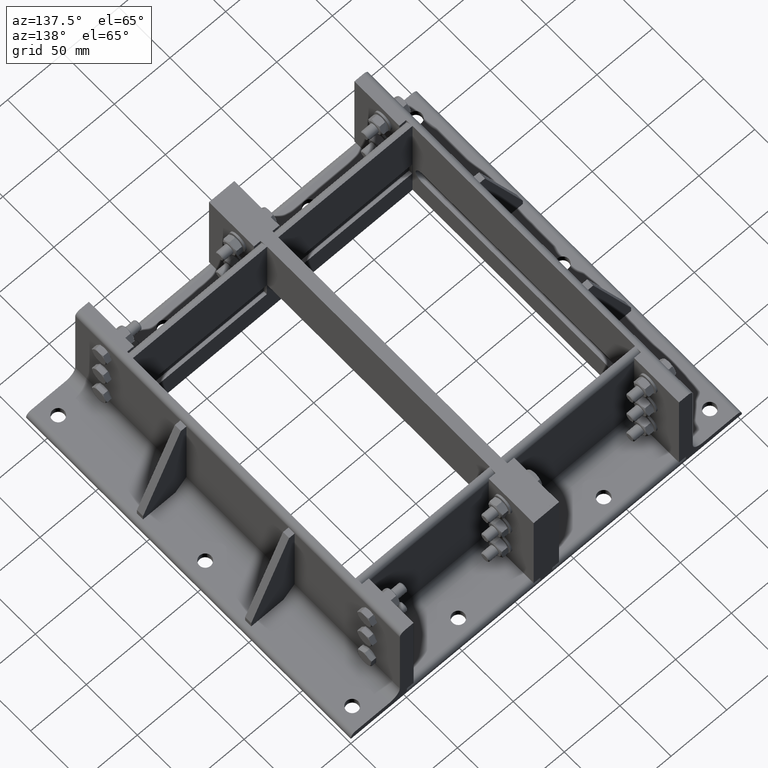
[diagram: clean part render]
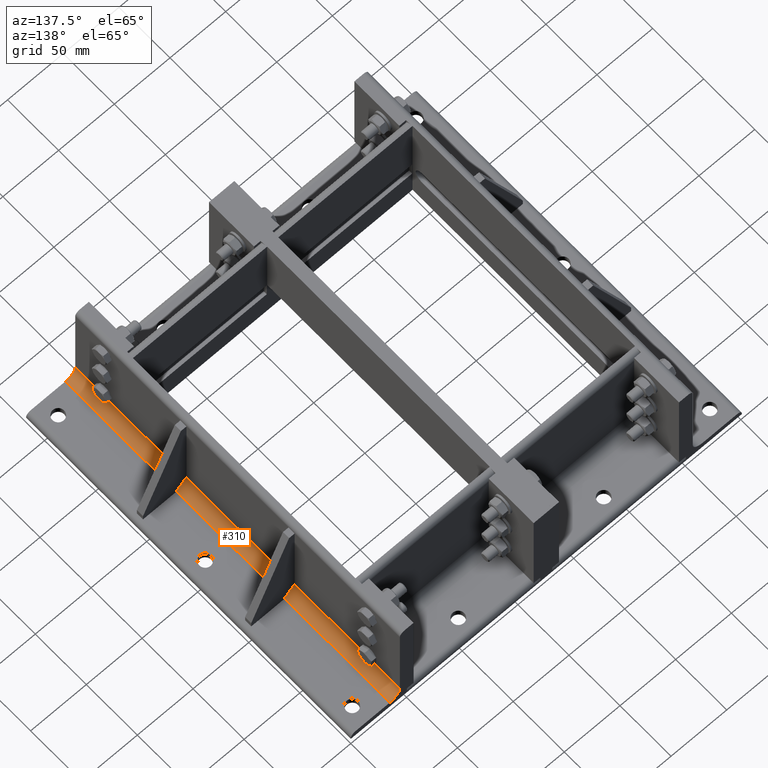
[diagram: same view with one face highlighted and labeled with its STEP entity id]
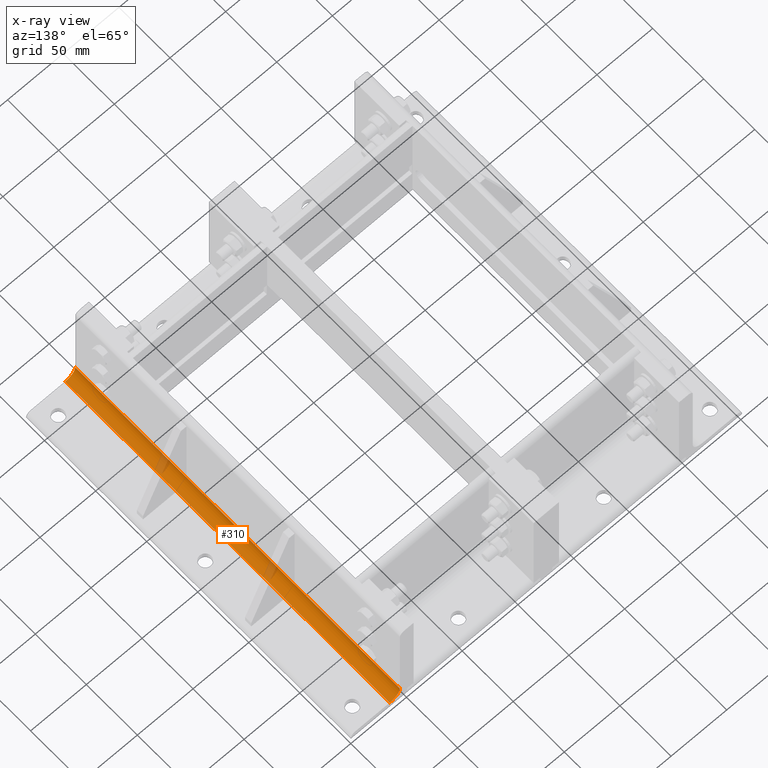
[diagram: x-ray of the same camera — body ghosted, the highlighted face saturated]
A machine part, auxiliary view. The second image highlights one B-rep face of the part: STEP entity #310.
The next image is the same camera in x-ray: the body ghosted, the highlighted face saturated — about 4% of this face is hidden behind the body in this view.
In plain terms, the highlighted cylindrical surface (edge-blend (fillet) strip) has radius 9 mm, axis along (0, 1, 0).
Its self-contained STEP definition (entity closure, byte-faithful):
#269=CARTESIAN_POINT('',(15.0,0.0,15.0));
#270=DIRECTION('',(0.0,1.0,0.0));
#271=DIRECTION('',(-0.707106781186548,0.0,-0.707106781186547));
#272=AXIS2_PLACEMENT_3D('',#269,#270,#271);
#273=CYLINDRICAL_SURFACE('',#272,9.0);
#274=CARTESIAN_POINT('',(5.999999999999998,0.0,15.000000000000002));
#275=VERTEX_POINT('',#274);
#276=CARTESIAN_POINT('',(15.0,0.0,6.000000000000001));
#277=VERTEX_POINT('',#276);
#278=CARTESIAN_POINT('',(15.0,0.0,15.0));
#279=DIRECTION('',(0.0,-1.0,0.0));
#280=DIRECTION('',(-0.707106781186548,0.0,-0.707106781186547));
#281=AXIS2_PLACEMENT_3D('',#278,#279,#280);
#282=CIRCLE('',#281,9.0);
#283=EDGE_CURVE('',#275,#277,#282,.T.);
#284=ORIENTED_EDGE('',*,*,#283,.T.);
#285=CARTESIAN_POINT('',(15.0,318.0,6.000000000000001));
#286=VERTEX_POINT('',#285);
#287=CARTESIAN_POINT('',(14.999999999999998,0.0,6.000000000000001));
#288=DIRECTION('',(0.0,1.0,0.0));
#289=VECTOR('',#288,318.0);
#290=LINE('',#287,#289);
#291=EDGE_CURVE('',#277,#286,#290,.T.);
#292=ORIENTED_EDGE('',*,*,#291,.T.);
#293=CARTESIAN_POINT('',(5.999999999999998,318.0,15.000000000000002));
#294=VERTEX_POINT('',#293);
#295=CARTESIAN_POINT('',(15.0,318.0,15.0));
#296=DIRECTION('',(0.0,1.0,0.0));
#297=DIRECTION('',(-0.707106781186548,0.0,-0.707106781186547));
#298=AXIS2_PLACEMENT_3D('',#295,#296,#297);
#299=CIRCLE('',#298,9.0);
#300=EDGE_CURVE('',#286,#294,#299,.T.);
#301=ORIENTED_EDGE('',*,*,#300,.T.);
#302=CARTESIAN_POINT('',(5.999999999999998,318.0,15.000000000000002));
#303=DIRECTION('',(0.0,-1.0,0.0));
#304=VECTOR('',#303,318.0);
#305=LINE('',#302,#304);
#306=EDGE_CURVE('',#294,#275,#305,.T.);
#307=ORIENTED_EDGE('',*,*,#306,.T.);
#308=EDGE_LOOP('',(#284,#292,#301,#307));
#309=FACE_OUTER_BOUND('',#308,.T.);
#310=ADVANCED_FACE('',(#309),#273,.F.);